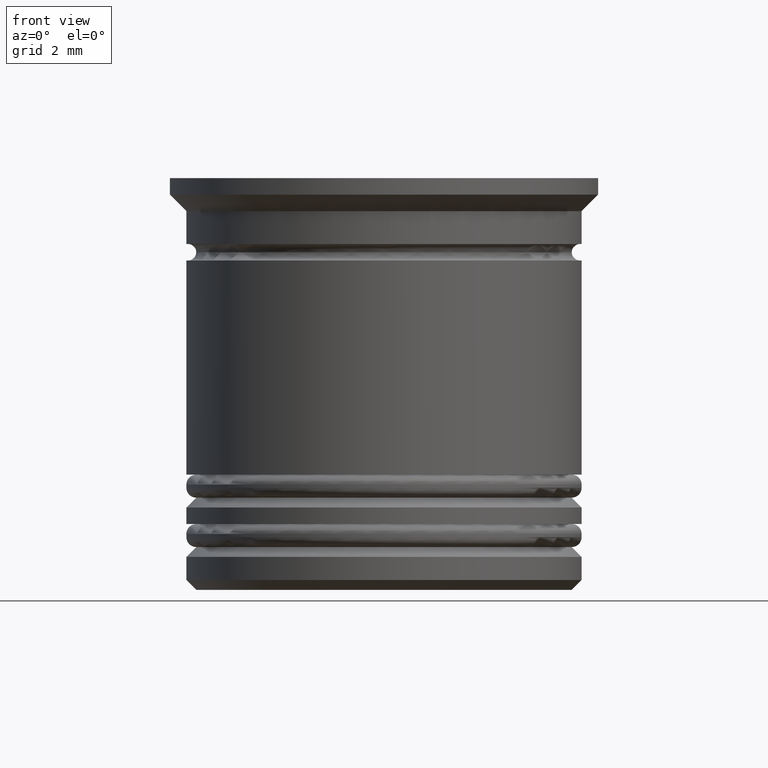
[diagram: clean part render]
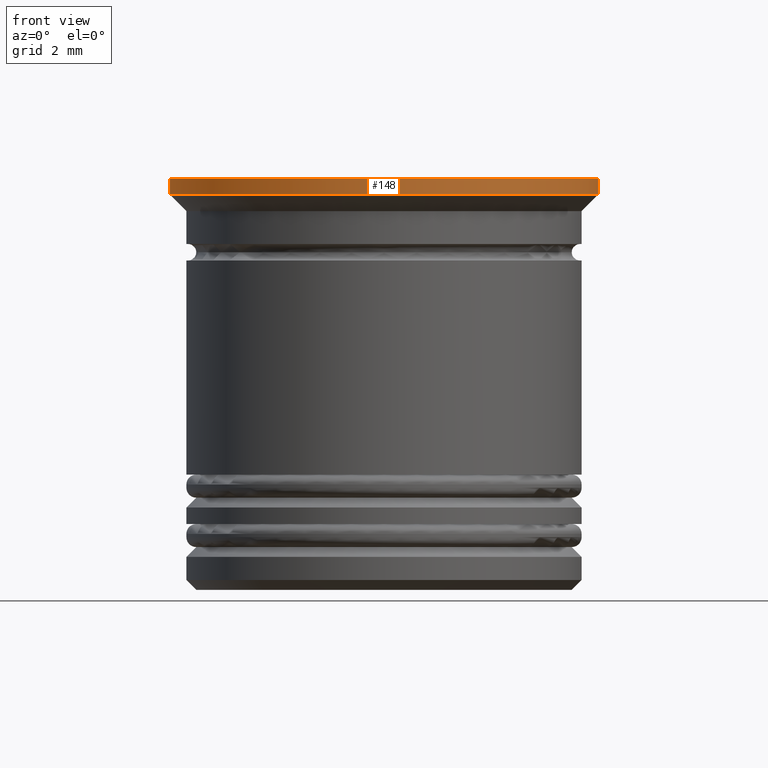
[diagram: same view with one face highlighted and labeled with its STEP entity id]
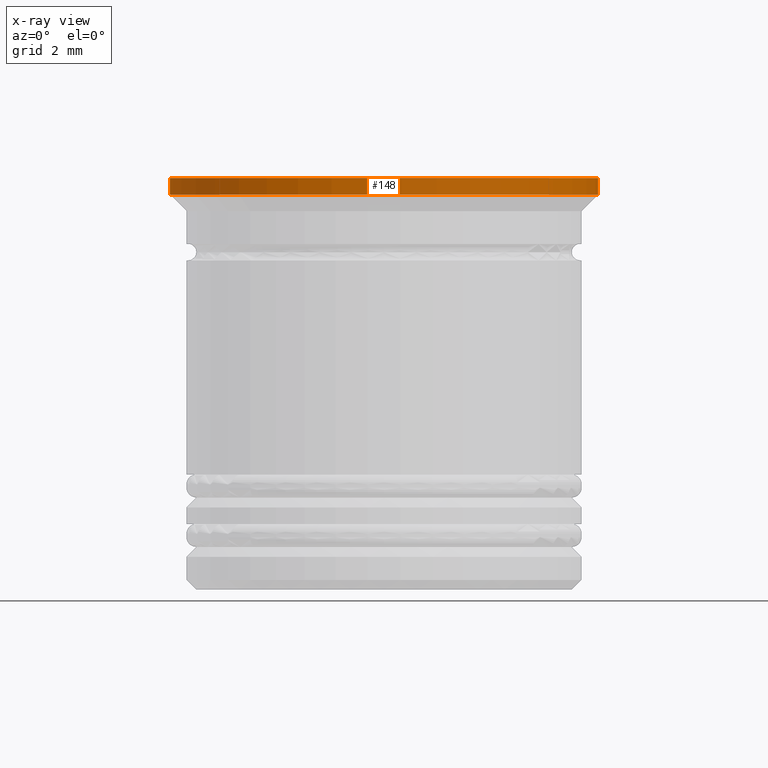
[diagram: x-ray of the same camera — body ghosted, the highlighted face saturated]
A machine part, front view. The second image highlights one B-rep face of the part: STEP entity #148.
The next image is the same camera in x-ray: the body ghosted, the highlighted face saturated — about 0% of this face is hidden behind the body in this view.
In plain terms, the highlighted cylindrical surface (partial cylindrical patch) has radius 6.5 mm, axis along (-0, -0, 1).
Its self-contained STEP definition (entity closure, byte-faithful):
#5 = ORIENTED_EDGE ( 'NONE', *, *, #1573, .F. ) ;
#55 = AXIS2_PLACEMENT_3D ( 'NONE', #100, #222, #689 ) ;
#100 = CARTESIAN_POINT ( 'NONE',  ( 0.000000000000000000, 0.000000000000000000, 0.000000000000000000 ) ) ;
#117 = CARTESIAN_POINT ( 'NONE',  ( 6.500000000000000000, 0.000000000000000000, -0.4999999999999956701 ) ) ;
#131 = DIRECTION ( 'NONE',  ( 1.000000000000000000, 0.000000000000000000, 0.000000000000000000 ) ) ;
#134 = LINE ( 'NONE', #1235, #837 ) ;
#148 = ADVANCED_FACE ( 'NONE', ( #301 ), #913, .T. ) ;
#222 = DIRECTION ( 'NONE',  ( -0.000000000000000000, -0.000000000000000000, 1.000000000000000000 ) ) ;
#270 = VERTEX_POINT ( 'NONE', #396 ) ;
#301 = FACE_OUTER_BOUND ( 'NONE', #1738, .T. ) ;
#350 = CIRCLE ( 'NONE', #1556, 6.500000000000000000 ) ;
#396 = CARTESIAN_POINT ( 'NONE',  ( 6.500000000000000000, 0.000000000000000000, 0.000000000000000000 ) ) ;
#494 = VERTEX_POINT ( 'NONE', #117 ) ;
#535 = DIRECTION ( 'NONE',  ( -1.000000000000000000, 0.000000000000000000, 0.000000000000000000 ) ) ;
#569 = ORIENTED_EDGE ( 'NONE', *, *, #976, .F. ) ;
#597 = CARTESIAN_POINT ( 'NONE',  ( 0.000000000000000000, 0.000000000000000000, 0.000000000000000000 ) ) ;
#632 = DIRECTION ( 'NONE',  ( -0.000000000000000000, -0.000000000000000000, 1.000000000000000000 ) ) ;
#657 = DIRECTION ( 'NONE',  ( -0.000000000000000000, -0.000000000000000000, 1.000000000000000000 ) ) ;
#664 = CARTESIAN_POINT ( 'NONE',  ( 0.000000000000000000, 0.000000000000000000, -0.4999999999999956701 ) ) ;
#689 = DIRECTION ( 'NONE',  ( 1.000000000000000000, 0.000000000000000000, 0.000000000000000000 ) ) ;
#837 = VECTOR ( 'NONE', #1544, 1000.000000000000000 ) ;
#913 = CYLINDRICAL_SURFACE ( 'NONE', #1193, 6.500000000000000000 ) ;
#940 = CARTESIAN_POINT ( 'NONE',  ( 6.500000000000000000, 0.000000000000000000, 0.000000000000000000 ) ) ;
#947 = DIRECTION ( 'NONE',  ( -0.000000000000000000, -0.000000000000000000, 1.000000000000000000 ) ) ;
#976 = EDGE_CURVE ( 'NONE', #1855, #1589, #134, .T. ) ;
#1174 = EDGE_CURVE ( 'NONE', #1855, #494, #350, .T. ) ;
#1193 = AXIS2_PLACEMENT_3D ( 'NONE', #597, #657, #131 ) ;
#1235 = CARTESIAN_POINT ( 'NONE',  ( -6.500000000000000000, 7.960204194457795477E-16, 0.000000000000000000 ) ) ;
#1371 = ORIENTED_EDGE ( 'NONE', *, *, #1806, .T. ) ;
#1382 = CARTESIAN_POINT ( 'NONE',  ( -6.500000000000000000, 7.960204194457795477E-16, -0.4999999999999956701 ) ) ;
#1544 = DIRECTION ( 'NONE',  ( -0.000000000000000000, -0.000000000000000000, 1.000000000000000000 ) ) ;
#1556 = AXIS2_PLACEMENT_3D ( 'NONE', #664, #947, #535 ) ;
#1573 = EDGE_CURVE ( 'NONE', #1589, #270, #1833, .T. ) ;
#1589 = VERTEX_POINT ( 'NONE', #1785 ) ;
#1738 = EDGE_LOOP ( 'NONE', ( #569, #1781, #1371, #5 ) ) ;
#1781 = ORIENTED_EDGE ( 'NONE', *, *, #1174, .T. ) ;
#1785 = CARTESIAN_POINT ( 'NONE',  ( -6.500000000000000000, 7.960204194457795477E-16, 0.000000000000000000 ) ) ;
#1804 = VECTOR ( 'NONE', #632, 1000.000000000000000 ) ;
#1806 = EDGE_CURVE ( 'NONE', #494, #270, #1828, .T. ) ;
#1828 = LINE ( 'NONE', #940, #1804 ) ;
#1833 = CIRCLE ( 'NONE', #55, 6.500000000000000000 ) ;
#1855 = VERTEX_POINT ( 'NONE', #1382 ) ;